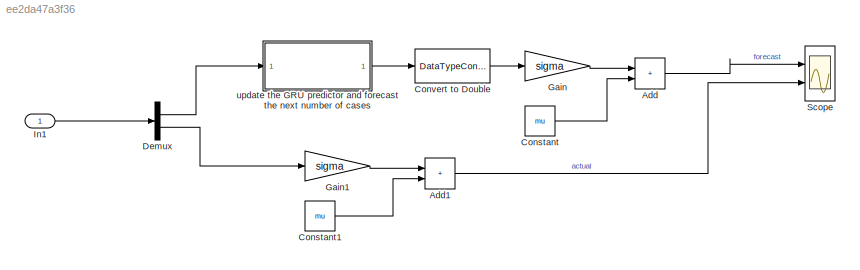
MODEL slx_ee2da47a3f36
KIND model
CONFIG AbsTol = auto
CONFIG EnableMultiTasking = off
CONFIG FixedStep = 1
CONFIG MaxStep = auto
CONFIG MinStep = auto
CONFIG RelTol = 1e-3
CONFIG SampleTimeConstraint = Unconstrained
CONFIG Solver = FixedStepAuto
CONFIG SolverName = FixedStepAuto
CONFIG StartTime = 449
CONFIG StopTime = 497
BLOCK [Sum] Add
  IconShape = rectangular
  Ports = [2, 1]
BLOCK [Sum] Add1
  IconShape = rectangular
  Ports = [2, 1]
BLOCK [Constant] Constant
  Value = mu
BLOCK [Constant] Constant1
  Value = mu
BLOCK [DataTypeConversion] Convert to Double
  OutDataTypeStr = double
  RndMeth = Floor
  SaturateOnIntegerOverflow = off
BLOCK [Demux] Demux
  Outputs = 2
  Ports = [1, 2]
BLOCK [Gain] Gain
  Gain = sigma
BLOCK [Gain] Gain1
  Gain = sigma
BLOCK [Inport] In1
  PortDimensions = 2
BLOCK [Scope] Scope
  Floating = off
  NumInputPorts = 2
  Ports = [2]
  ScopeSpecificationString = Simulink.scopes.TimeScopeBlockCfg('CurrentConfiguration', extmgr.ConfigurationSet(extmgr.Configuration('Core','General UI',true),extmgr.Configuration('Core','Source UI',true),extmgr.Configuration('Sources','WiredSimulink',true,'DataLogging',true,'DataLoggingVariableName','ScopeOut','DataLoggingSaveFormat','StructureWithTime'),extmgr.Configuration('Visuals','Time Domain',true,'SerializedDisplays',{...<+1482ch>
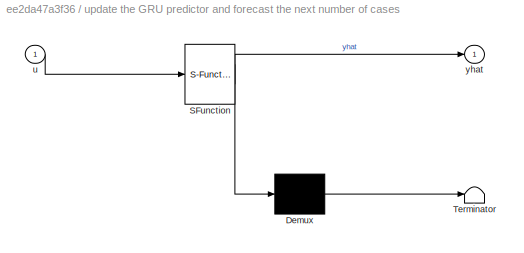
BLOCK [SubSystem] update the GRU predictor and forecast the next number of cases  
  ErrorFcn = Stateflow.Translate.translate
  PermitHierarchicalResolution = ExplicitOnly
  Ports = [1, 1]
  RequestExecContextInheritance = off
  SFBlockType = MATLAB Function
  TreatAsAtomicUnit = on
BLOCK [Demux] update the GRU predictor and forecast the next number of cases  / Demux 
  Outputs = 1
  Ports = [1, 1]
BLOCK [S-Function] update the GRU predictor and forecast the next number of cases  / SFunction 
  EnableBusSupport = on
  FunctionName = sf_sfun
  PortCounts = [1 2]
  Ports = [1, 2]
  SFcnIsStateOwnerBlock = off
  SFunctionDeploymentMode = off
  Tag = Stateflow S-Function 2
BLOCK [Terminator] update the GRU predictor and forecast the next number of cases  / Terminator 
BLOCK [Inport] update the GRU predictor and forecast the next number of cases  /u
BLOCK [Outport] update the GRU predictor and forecast the next number of cases  /yhat
LINE Add1:1 -> Scope:2
LINE Add:1 -> Scope:1
LINE Constant1:1 -> Add1:2
LINE Constant:1 -> Add:2
LINE Convert to Double:1 -> Gain:1
LINE Demux:1 -> update the GRU predictor and forecast the next number of cases  :1
LINE Demux:2 -> Gain1:1
LINE Gain1:1 -> Add1:1
LINE Gain:1 -> Add:1
LINE In1:1 -> Demux:1
LINE update the GRU predictor and forecast the next number of cases  :1 -> Convert to Double:1
CHART update the GRU predictor and 
forecast the next number of cases   states=1 transitions=1
  STATE_LABEL 'eML_blk_kernel()'
  STATE_LABEL "SCRIPT:\nfunction yhat = GRU_Predicotr(u)\n\nyhat = single(0); % WA because the analyzer cannot identify this data type for code generation\n\ncoder.extrinsic('my_update_predict_fcn'); % declare extrinsic functions for code generation\n\nyhat = my_update_predict_fcn(u);\n"
CHART  states=0 transitions=0
